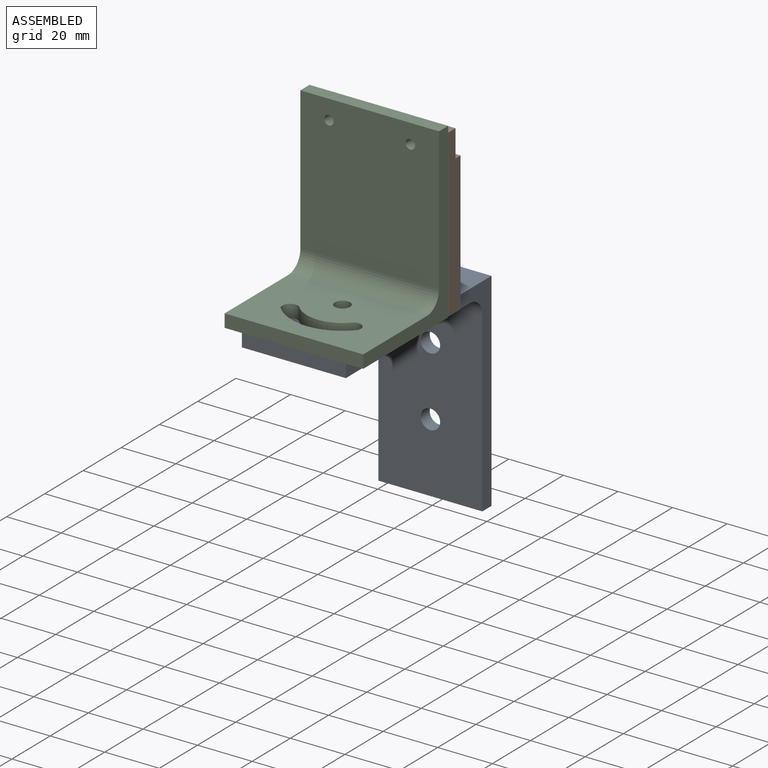
[diagram: assembled view]
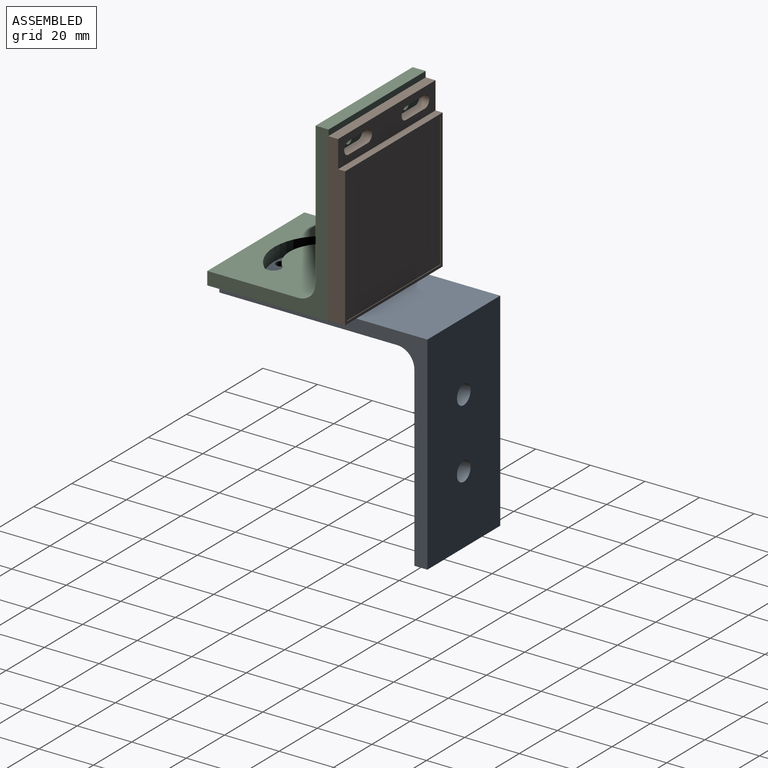
[diagram: assembled view, second angle]
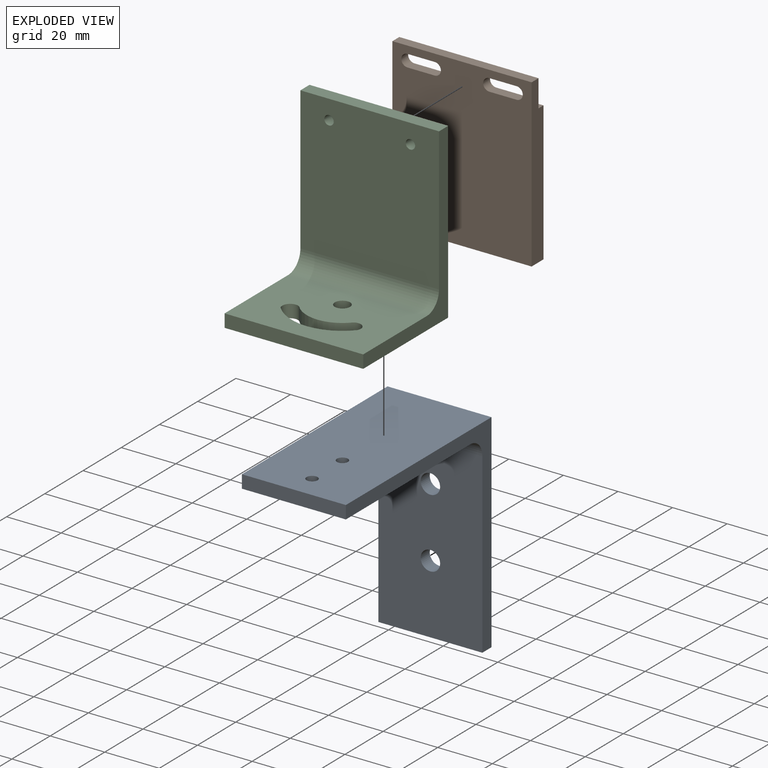
[diagram: exploded view]
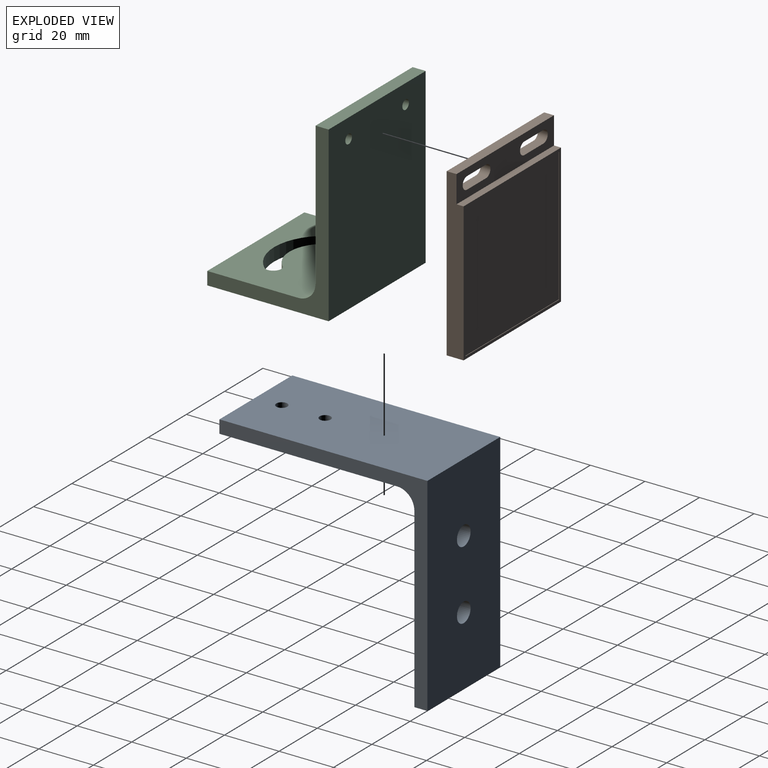
[diagram: exploded view, second angle]
ASSEMBLY  parts=3 mates=2
PART A: 13 faces, bbox 38.1x76.2x76.2 mm
  f0: plane 76.2x38.1mm, normal (0,1,0), area 2823.2mm2, adj f1,f6,f7,f8,f9,f10
  f1: plane 76.2x38.1mm, normal (0,0,1), area 2877.6mm2, adj f0,f2,f7,f8,f11,f12
  f2: plane 38.1x4.78mm, normal (0,-1,0), area 181.9mm2, adj f1,f3,f7,f8
  f3: plane 65.08x38.1mm, normal (0,0,-1), area 2453.7mm2, adj f2,f4,f7,f8,f11,f12
  f4: cylinder r=6.35mm len=38.1mm, axis (-1,0,0), area 380mm2, adj f3,f5,f7,f8
  f5: plane 65.08x38.1mm, normal (0,-1,0), area 2399.3mm2, adj f4,f6,f7,f8,f9,f10
  f6: plane 38.1x4.78mm, normal (0,0,-1), area 181.9mm2, adj f0,f5,f7,f8
  f7: plane 76.2x76.2mm, normal (1,0,0), area 713.6mm2, adj f0,f1,f2,f3,f4,f5,f6
  f8: plane 76.2x76.2mm, normal (-1,0,0), area 713.6mm2, adj f0,f1,f2,f3,f4,f5,f6
  f9: cylinder r=3.57mm len=7.14mm, axis (0,1,0), area 107.1mm2, adj f0,f5
  f10: cylinder r=3.57mm len=7.14mm, axis (0,1,0), area 107.1mm2, adj f0,f5
  f11: cylinder r=2.02mm len=4.78mm, axis (0,0,1), area 60.6mm2, adj f1,f3
  f12: cylinder r=2.02mm len=4.78mm, axis (0,0,1), area 60.6mm2, adj f1,f3
PART B: 21 faces, bbox 51x61x6.2 mm
  f0: plane 61x51mm, normal (0,0,-1), area 2989.2mm2, adj f1,f2,f3,f12,f13,f14,f15,f16
  f1: plane 61x6.2mm, normal (-1,0,0), area 352.2mm2, adj f0,f2,f4,f5,f6,f12
  f2: plane 51x6.2mm, normal (0,1,0), area 316.2mm2, adj f0,f1,f3,f6
  f3: plane 61x6.2mm, normal (1,0,0), area 352.2mm2, adj f0,f2,f4,f5,f6,f12
  f4: plane 51x10mm, normal (0,0,1), area 388.2mm2, adj f1,f3,f5,f12,f13,f14,f15,f16
  f5: plane 51x2.6mm, normal (0,-1,0), area 132.6mm2, adj f1,f3,f4,f6
  f6: plane 51x51mm, normal (0,0,1), area 200mm2, adj f1,f2,f3,f5,f7,f8,f9,f10
  f7: plane 49x0.2mm, normal (1,0,0), area 9.8mm2, adj f6,f8,f10,f11
  f8: plane 49x0.2mm, normal (0,-1,0), area 9.8mm2, adj f6,f7,f9,f11
  f9: plane 49x0.2mm, normal (-1,0,0), area 9.8mm2, adj f6,f8,f10,f11
  f10: plane 49x0.2mm, normal (0,1,0), area 9.8mm2, adj f6,f7,f9,f11
  f11: plane 49x49mm, normal (0,0,1), area 2401mm2, adj f7,f8,f9,f10
  f12: plane 51x3.6mm, normal (0,-1,0), area 183.6mm2, adj f0,f1,f3,f4
  f13: cylinder r=2.25mm len=4.5mm, axis (0,0,1), area 25.4mm2, adj f0,f4,f14,f16
  f14: plane 10x3.6mm, normal (0,-1,0), area 36mm2, adj f0,f4,f13,f15
  f15: cylinder r=2.25mm len=4.5mm, axis (0,0,1), area 25.4mm2, adj f0,f4,f14,f16
  f16: plane 10x3.6mm, normal (0,1,0), area 36mm2, adj f0,f4,f13,f15
  f17: plane 10x3.6mm, normal (0,-1,0), area 36mm2, adj f0,f4,f18,f20
  f18: cylinder r=2.25mm len=4.5mm, axis (0,0,1), area 25.4mm2, adj f0,f4,f17,f19
  f19: plane 10x3.6mm, normal (0,1,0), area 36mm2, adj f0,f4,f18,f20
  f20: cylinder r=2.25mm len=4.5mm, axis (0,0,1), area 25.4mm2, adj f0,f4,f17,f19
PART C: 16 faces, bbox 50.8x44.5x63.5 mm
  f0: plane 50.8x44.45mm, normal (0,0,-1), area 2062.6mm2, adj f2,f3,f7,f8,f9,f10,f11,f12
  f1: plane 50.8x33.33mm, normal (0,0,1), area 1497.4mm2, adj f2,f6,f7,f8,f9,f10,f11,f12
  f2: plane 50.8x4.78mm, normal (0,-1,0), area 242.6mm2, adj f0,f1,f7,f8
  f3: plane 63.5x50.8mm, normal (0,1,0), area 3207.1mm2, adj f0,f4,f7,f8,f14,f15
  f4: plane 50.8x4.78mm, normal (0,0,1), area 242.6mm2, adj f3,f5,f7,f8
  f5: plane 52.38x50.8mm, normal (0,-1,0), area 2641.9mm2, adj f4,f6,f7,f8,f14,f15
  f6: cylinder r=6.35mm len=50.8mm, axis (-1,0,0), area 506.7mm2, adj f1,f5,f7,f8
  f7: plane 63.5x44.45mm, normal (1,0,0), area 501.3mm2, adj f0,f1,f2,f3,f4,f5,f6
  f8: plane 63.5x44.45mm, normal (-1,0,0), area 501.3mm2, adj f0,f1,f2,f3,f4,f5,f6
  f9: cylinder r=13.07mm len=19.92mm, axis (0,0,1), area 108.1mm2, adj f0,f1,f10,f12
  f10: cylinder r=2.9mm len=4.78mm, axis (0,0,1), area 36.5mm2, adj f0,f1,f9,f11
  f11: cylinder r=18.68mm len=28.06mm, axis (0,0,1), area 151.6mm2, adj f0,f1,f10,f12
  f12: cylinder r=2.9mm len=4.78mm, axis (0,0,1), area 36.5mm2, adj f0,f1,f9,f11
  f13: cylinder r=2.81mm len=5.61mm, axis (0,0,1), area 84.2mm2, adj f0,f1
  f14: cylinder r=1.73mm len=4.78mm, axis (0,1,0), area 51.8mm2, adj f3,f5
  f15: cylinder r=1.73mm len=4.78mm, axis (0,1,0), area 51.8mm2, adj f3,f5
PLACE A t=(-22.62,40.79,-24.55)mm
PLACE B rot(axis=(-1,0,0),90deg) t=(-3.48,11.43,44.44)mm
PLACE C t=(-28.97,-10.8,15.94)mm
MATE revolute C.f9 <-> A.f12  axis (0,0,-1) through (-3.57,-7.62,13.55)mm
MATE fastened B.f0 <-> C.f15  axis (0,-1,0) through (-18.48,11.43,69.94)mm
